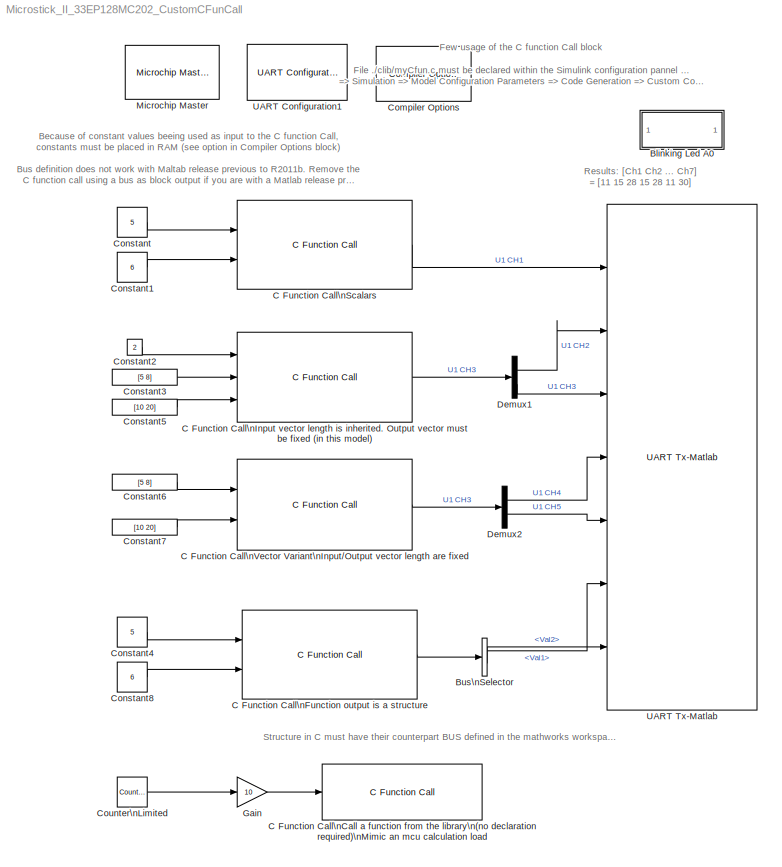
MODEL Microstick_II_33EP128MC202_CustomCFunCall
KIND model
CONFIG PreLoadFcn = disp('Start DefineBUS_Struct.m script');\ncd clib\nDefineBUS_Struct;\ncd ..\n
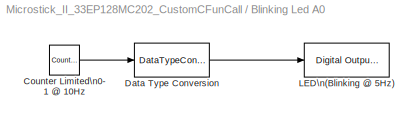
BLOCK [SubSystem] Blinking Led A0
  FunctionWithSeparateData = off
  MaskHideContents = off
  MinAlgLoopOccurrences = off
  Opaque = off
  Ports = []
  PropExecContextOutsideSubsystem = off
  RTWSystemCode = Auto
  RequestExecContextInheritance = off
  SID = 105
BLOCK [Reference] Blinking Led A0/Counter Limited\n0-1 @ 10Hz  REF=simulink/Sources/Counter\nLimited
  Ports = [0, 1]
  SID = 102
  SourceBlock = simulink/Sources/Counter\nLimited
  SourceType = Counter Limited
  tsamp = .1
  uplimit = 1
BLOCK [DataTypeConversion] Blinking Led A0/Data Type Conversion
  RndMeth = Floor
  SID = 103
  SaturateOnIntegerOverflow = off
BLOCK [Reference] Blinking Led A0/LED\n(Blinking @ 5Hz)  REF=MCHP_Blockset/Digital IO/Digital Output\nWrite
  MCHP_MASTERLINK = Microstick_II_33EP128MC202_CustomCFunCall/Microchip Master
  MCHP_PORT = {Digital Out}{DOU}1:1:A0;
  ORDERING = None
  PACK = off
  PIN = 0
  PORT = Dynamic Options
  PORT_TXT = A   [ 0 : 4 ]
  Ports = [1]
  SID = 111
  SIMULTANEOUS = off
  SampleTime = -1
  SourceBlock = MCHP_Blockset/Digital IO/Digital Output\nWrite
  SourceType = Output driver for Digital Output Pins
BLOCK [BusSelector] Bus\nSelector
  OutputSignals = Val1,Val2
  Ports = [1, 2]
  SID = 100
BLOCK [Reference] C Function Call\nCall a function from the library\n(no declaration required)\nMimic an mcu calculation load  REF=MCHP_Blockset/User Functions/C Function Call
  AddHeaderDeclaration = off
  DataCollected = 0
  Fct1BlockIn = t_us
  FctReturnBlockOut = off
  Function1 = extern void __delay_us(unsigned long t_us);
  Function1Type = when block is updated (default)
  ListFunctions1 = Custom Function
  MCHP_MASTERLINK = Microstick_II_33EP128MC202_CustomCFunCall/Microchip Master
  ORDERING = None
  ParseFilesChkbx = off
  PinAnalogInput = []
  PinDigitalInput = []
  PinDigitalOutput = []
  Ports = [1]
  SID = 108
  SampleTime = -1
  SourceBlock = MCHP_Blockset/User Functions/C Function Call
  SourceType = C Function Call
BLOCK [Reference] C Function Call\nFunction output is a structure  REF=MCHP_Blockset/User Functions/C Function Call
  AddHeaderDeclaration = on
  DataCollected = s.chksm={ '47804-Jul-2014 11:07:09'};s.File1=reshape({ ' unsigned int  myAdd(unsigned int A, unsigned int B)','  void  myAdd_ptr(unsigned int n, unsigned int* A, unsigned int* B, unsigned int* C)','  myStruct  myFct(unsigned int A, unsigned int B)'},1,3);  <repeated x3 — deduplicated; at blocks: C Function Call\nFunction output is a structure, C Function Call\nScalars, C Function Call\nVector Variant\nInput/Output v…>
  Fct1BlockIn = A  , B
  FctReturnBlockOut = on
  Function1 = myStruct myFct(unsigned int A, unsigned int B)
  Function1Type = when block is updated (default)
  ListFunctions1 = Custom Function
  MCHP_MASTERLINK = Microstick_II_33EP128MC202_CustomCFunCall/Microchip Master
  ORDERING = None
  ParseFilesChkbx = on
  PinAnalogInput = []
  PinDigitalInput = []
  PinDigitalOutput = []
  Ports = [2, 1]
  SID = 97
  SampleTime = -1
  SourceBlock = MCHP_Blockset/User Functions/C Function Call
  SourceType = C Function Call
BLOCK [Reference] C Function Call\nInput vector length is inherited. Output vector must be fixed (in this model)  REF=MCHP_Blockset/User Functions/C Function Call
  AddHeaderDeclaration = on
  DataCollected = 0
  Fct1BlockIn = n  , A  , B
  Fct1BlockOut = C[2]
  FctReturnBlockOut = off
  Function1 = void myAdd_ptr(unsigned int n, unsigned int* A, unsigned int* B, unsigned int* C)
  Function1Type = when block is updated (default)
  ListFunctions1 = Custom Function
  MCHP_MASTERLINK = Microstick_II_33EP128MC202_CustomCFunCall/Microchip Master
  ORDERING = None
  ParseFilesChkbx = on
  PinAnalogInput = []
  PinDigitalInput = []
  PinDigitalOutput = []
  Ports = [3, 1]
  SID = 86
  SampleTime = -1
  SourceBlock = MCHP_Blockset/User Functions/C Function Call
  SourceType = C Function Call
BLOCK [Reference] C Function Call\nScalars  REF=MCHP_Blockset/User Functions/C Function Call
  AddHeaderDeclaration = on
  Fct1BlockIn = A  , B
  FctReturnBlockOut = on
  Function1 = unsigned int myAdd(unsigned int A, unsigned int B)
  Function1Type = when block is updated (default)
  ListFunctions1 = Custom Function
  MCHP_MASTERLINK = Microstick_II_33EP128MC202_CustomCFunCall/Microchip Master
  ORDERING = None
  ParseFilesChkbx = on
  PinAnalogInput = []
  PinDigitalInput = []
  PinDigitalOutput = []
  Ports = [2, 1]
  SID = 58
  SampleTime = -1
  SourceBlock = MCHP_Blockset/User Functions/C Function Call
  SourceType = C Function Call
BLOCK [Reference] C Function Call\nVector Variant\nInput//Output vector length are fixed  REF=MCHP_Blockset/User Functions/C Function Call
  AddHeaderDeclaration = off
  Fct1BlockIn = n=2 , A[2]  , B[2]
  Fct1BlockOut = C[2]
  FctReturnBlockOut = off
  Function1 = void myAdd_ptr(unsigned int n, unsigned int* A, unsigned int* B, unsigned int* C)
  Function1Type = when block is updated (default)
  ListFunctions1 = Custom Function
  MCHP_MASTERLINK = Microstick_II_33EP128MC202_CustomCFunCall/Microchip Master
  ORDERING = None
  ParseFilesChkbx = on
  PinAnalogInput = []
  PinDigitalInput = []
  PinDigitalOutput = []
  Ports = [2, 1]
  SID = 91
  SampleTime = -1
  SourceBlock = MCHP_Blockset/User Functions/C Function Call
  SourceType = C Function Call
BLOCK [Reference] Compiler Options  REF=MCHP_Blockset/System Configuration/Compiler Options
  AssemblyListing = off
  COMP_LIST = Dynamic Options
  COMP_LIST_TXT = xc16 - v1.26
  DEBUG_INFO = on
  HEAP_SIZE = 0
  LATEST_CMPLR = on
  MCHP_MASTERLINK = Microstick_II_33EP128MC202_CustomCFunCall/Microchip Master
  MCHP_MULTITHREAD_COMPILATION = on
  MCODE = is less than 32768 (faster)
  MCONST = in data memory
  MDATA = Use only memory below address 8192 (faster)
  MPLAB_LINKLIB = default
  MPLAB_LINKLIB1 = default
  MSCALAR = Use only memory below address 8192 (faster)
  OMF = elf
  OMIT_FRAME_POINTER = off
  OPTIMIZATION_LEVEL = 3
  PROCEDURAL_ABSTRACTION = off
  Ports = []
  Priority = 1
  ProduceHexOutput = off
  SID = 67
  SourceBlock = MCHP_Blockset/System Configuration/Compiler Options
  UNROLL_LOOPS = off
  USE_64BIT_DOUBLE = off
BLOCK [Constant] Constant
  OutDataTypeStr = Inherit: Inherit via back propagation
  SID = 60
  SampleTime = .005
  Value = 5
BLOCK [Constant] Constant1
  OutDataTypeStr = Inherit: Inherit via back propagation
  SID = 66
  SampleTime = .005
  Value = 6
BLOCK [Constant] Constant2
  OutDataTypeStr = Inherit: Inherit via back propagation
  SID = 87
  SampleTime = .005
  Value = 2
BLOCK [Constant] Constant3
  OutDataTypeStr = Inherit: Inherit via back propagation
  SID = 88
  SampleTime = .005
  Value = [5 8]
BLOCK [Constant] Constant4
  OutDataTypeStr = Inherit: Inherit via back propagation
  SID = 98
  SampleTime = .005
  Value = 5
BLOCK [Constant] Constant5
  OutDataTypeStr = Inherit: Inherit via back propagation
  SID = 89
  SampleTime = .005
  Value = [10 20]
BLOCK [Constant] Constant6
  OutDataTypeStr = Inherit: Inherit via back propagation
  SID = 93
  SampleTime = .005
  Value = [5 8]
BLOCK [Constant] Constant7
  OutDataTypeStr = Inherit: Inherit via back propagation
  SID = 94
  SampleTime = .005
  Value = [10 20]
BLOCK [Constant] Constant8
  OutDataTypeStr = Inherit: Inherit via back propagation
  SID = 99
  SampleTime = .005
  Value = 6
BLOCK [Reference] Counter\nLimited  REF=simulink/Sources/Counter\nLimited
  Ports = [0, 1]
  SID = 109
  SourceBlock = simulink/Sources/Counter\nLimited
  SourceType = Counter Limited
  tsamp = .01
  uplimit = 10
BLOCK [Demux] Demux1
  DisplayOption = bar
  Outputs = 2
  Ports = [1, 2]
  SID = 90
BLOCK [Demux] Demux2
  DisplayOption = bar
  Outputs = 2
  Ports = [1, 2]
  SID = 95
BLOCK [Gain] Gain
  Gain = 10
  OutDataTypeStr = uint32
  ParamDataTypeStr = uint32
  SID = 110
  SaturateOnIntegerOverflow = off
BLOCK [Reference] Microchip Master  REF=MCHP_Blockset/System Configuration/Microchip Master
  ACTIV_PLL = on
  ACTIV_PLL_spd = on
  AIVTDIS = Disable Alternate Vector Table
  ALTADREF = AVREF+/AVREF- are mapped to RA9/RA10
  ALTCMPI = C1INC is on RB13; C2INC is on RB9 and C3INC is on RA0
  ALTCVREF = CVREF+/CVREF- are mapped to RA9/RA10
  ALTI2C = I2C mapped to SDA1/SCL1 pins
  ALTI2C1 = I2C1 mapped to SDA1/SCL1 pins
  ALTI2C2 = I2C2 mapped to SDA2/SCL2 pins
  ALTPMP = EPMP pins are in default location mode
  ALTQIO = QEA1; QEB1; INDX1 are selected as inputs to QEI1
  ALTRB6 = Append the RP6/ASCL1/PMPD6 functions of RB6 to RA1 pin functions
  ALTSS1 = SS1A is selected as the I/O pin for SPI1
  ALTVREF = Voltage reference input; ADC =RA9/RA10 Comparator =RA9;RA10
  APL = Aux Flash Code protect is disabled
  APLK = Aux Flash Write Protection or Code Protection is Enabled
  ATMOD8 = Not used
  AWRP = Aux Flash may be written
  BACKBUG = Not used
  BKBUG = Device resets into Operational mode
  BODENV = 2.7V
  BOOTISA = Boot code and Exception code is MIPS32
  BOREN = Disable
  BOREN0 = Enabled
  BOREN1 = BOR Enabled [When BOREN=1]
  BORV = Brown-out Reset set at 2.0V
  BSEN = No Boot Segment
  BSLIM = Not used
  BSS = No boot program Flash segment
  BSS2 = No Boot Segment
  BTMODE = Device is in Single Boot (legacy) mode
  BTSWP = Not used
  BUSYFLAG = Dynamic Options
  BUSYFLAG_TXT = None
  BWP = Protection Disabled
  BWRP = Boot Segment may be written
  CMPPOL0 = Hysteresis is applied to falling edge
  CMPPOL1 = Hysteresis is applied to falling edge
  COE = Reset Into Operational Mode
  CP = Protection Disabled
  CSEQ = Not used
  CSS = No Protection (other than CWRP)
  CTXT1 = Not Assigned
  CTXT2 = Not Assigned
  CWRP = Configuration Segment may be written
  DBCC = Not used
  DBGPER = Allow CPU access to all permission regions
  DEBUG = Debugger is disabled
  DFMCY = Not used
  DISUVREG = Regulator is disabled
  DMTCNT = 2^31 (2147483648)
  DMTEN = Dead Man Timer is Enabled and cannot be disabled by software
  DMTINTV = Window/Interval value is 127/128 counter value
  DMTIVT = Not used
  DSBOREN = Deep Sleep BOR enabled in Deep Sleep
  DSLPBOR = Deep Sleep BOR enabled in Deep Sleep
  DSSWEN = Deep Sleep is controlled by the register bit DSEN
  DSWDTEN = DSWDT enabled
  DSWDTOSC = DSWDT uses Low Power RC Oscillator (LPRC)
  DSWDTPS = 1:2;147;483;648 (25.7 Days)
  EBS = No Boot EEPROM
  EJTAGBEN = Normal EJTAG functionality
  ESS = No Segment Data EEPROM
  EXTDDRSIZE = External DDR2 Size is 128 MB
  FCANIO = Default CAN I/O
  FCKSM = Clock switching is enabled;Fail-safe Clock Monitor is disabled
  FCKSMEN = Sw Disabled; Mon Disabled
  FDMTEN = Deadman Timer is disabled
  FECCCON = ECC and Dynamic ECC are disabled (ECCCON bits are writable)
  FETHIO = Default Ethernet I/O
  FMIIEN = MII Enabled
  FNOSC = Internal Fast RC (FRC)
  FOS = Primary Oscillator
  FOSFPR = HS3 w/PLL 16x
  FPBDIV = Pb_Clk is Sys_Clk/8
  FPLLICLK = FRC is input to the System PLL
  FPLLIDIV = 12x Divider
  FPLLMUL = 24x Multiplier
  FPLLMULT = PLL Multiply by 128
  FPLLODIV = PLL Divide by 256
  FPLLRNG = 34-68 MHz Input
  FPR = ECIO w/ PLL 16x
  FPWRT = 128ms
  FRANGE = High Range
  FSLEEP = Flash is powered down when the device is in Sleep mode
  FSOSCEN = Enabled
  FSRSSEL = SRS Priority 7
  FUSBIDIO = Controlled by the USB Module
  FVBUSONIO = Controlled by USB Module
  FWDTEN = Disable
  FWDTWINSZ = Window size is 25%
  FWPSA = WDT prescaler ratio of 1:128
  FWPSA0 = 1:128
  FWPSB = 1:16
  GCP = General Segment Code protect is disabled
  GSS = General Segment Code protect is disabled
  GSS0 = No protection
  GSSK = General Segment Write Protection or Code Protection is Enabled
  GWRP = General Segment may be written
  HPOL = PWM module high side output pins have active-high output polarity
  HYST0 = 45 mV Hysteresis
  HYST1 = 45 mV Hysteresis
  I2C1SEL = Use Default SCL1/SDA1 Pins For I2C1
  I2C2SEL = I2C2 is multiplexed to SDA2/RA3 and SCL2/RA2
  ICESEL = Communicate on PGEC1/PGED1
  ICS = Communicate on PGEC1 and PGED1
  IESO = Start up with FRC; then switch
  IOL1WAY = Allow only one reconfiguration
  JTAGEN = Disable
  LPCFG = Disabled - regardless of RETEN
  LPOL = PWM module low side output pins have active-high output polarity
  LPRCSEL = High Power; High Accuracy Mode
  LVRCFG = Low Voltage regulator is not available
  MCHPVAR = MCHP.fcy.periph=MCHP_Fun.Hex2num('[418C9DC9C9249248]');MCHP.fcy.MIPS=MCHP_Fun.Hex2num('[418C9DC9C9249248]');MCHP.PowerSave=0;MCHP.TimeStepFactor=MCHP_Fun.Hex2num('[3FEFFFFE00CDCD2A]');MCHP.TimeStep_Timer=1;MCHP.NTIMERS=5;MCHP.id.name='33EP128MC202';MCHP.id.N=reshape([33 128 202],1,3);MCHP.id.L=reshape({ 'EP','MC',''},1,3);MCHP.id.Arch=3;MCHP.periph.PPS.reg_RPINRx=reshape([-1 1 1 -1 -1 -1 1 -1 -1 -...<+5789ch>
  MCHP_CRC = 3132789
  MCHP_PLLRegisters = [5    226  16387     -1]
  MCHP_TIMER_REQUEST = {Time Step}{TS}0:2:3:1:[]:300064.2857142857;
  MCHP_TIMER_RESULT = [1 37507.035714285696 ]
  MCLRE = RA5 input pin disabled;MCLR pin enabled
  MIPS = 60.012857142857136 * 1e6
  MIPS_DESIRED = 60e6
  MIPS_DESIRED_spd = 60e6
  ON = Not used
  OSCILLATOR_SELECT = Internal Fast RC (FRC)
  OSCILLATOR_SELECT_spd = Internal Fast RC (FRC)
  OSCIOFCN = OSCO/CLKO/RC15 functions as CLKO (FOSC/2)
  OSCIOFNC = OSC2 is general purpose digital I/O pin
  PGL1WAY = Allow only one reconfiguration
  PICREF = 33EP128MC202
  PLL96MHZ = 96 MHz PLL Startup is enabled automatically on start-up
  PLLDIV = PLL is disabled
  PLLKEN = Clock switch to PLL source will wait until the PLL lock signal is valid.
  PLLSS = PLL is fed by the Primary oscillator
  PLL_96MHZ = Enabled
  PMDL1WAY = Allow only one reconfiguration
  POSCBOOST = Boost the kick start of the oscillator
  POSCFREQ = Primary oscillator/external clock input frequency greater than 8MHz
  POSCGAIN = 2x gain setting
  POSCMD = EC (External Clock) Mode
  POSCMOD = Primary Oscillator Disabled
  POWERSAVE = off
  PWMLOCK = PWM registers may be written without key sequence
  PWMPIN = PWM module pins controlled by PORT register at device Reset
  PWP = Disable
  PWRTEN = PWRT enabled
  Ports = []
  QUARTZ = 7.37e+06
  QUARTZ_spd = 7.37e+06
  RBS = No Boot RAM
  RES = Not used
  RES1 = Not used
  RES2 = Not used
  RESERVED1 = Not used
  RETCFG = Retention regulator is not available
  RSS = No Secure RAM
  RSTPRI = Device will obtain reset instruction from Primary flash
  RTCBAT = RTC operation is continued through VBAT
  RTCOSC = RTCC uses Secondary Oscillator (SOSC)
  SEQNUM = Not used
  SID = 45
  SMCLR = MCLR pin generates a normal system Reset
  SOSCBOOST = Boost the kick start of the oscillator
  SOSCGAIN = 2x gain setting
  SOSCSEL = Secondary oscillator configured for high-power operation
  SOSCSRC = Analog Mode for use with crystal
  SSS = No Secure Segment
  SWRP = Secure segment may be written
  SourceBlock = MCHP_Blockset/System Configuration/Microchip Master
  TEMP = Not used
  TIMESTEP_REF = Timer  ( 0.005s + [-9.5218e-05%] ==> 0.005s )
  TRCEN = Trace features in the CPU are enabled
  TSEQ = Not used
  UPLLEN = Disabled and bypassed
  UPLLFSEL = USB PLL input is 24 MHz
  UPLLIDIV = 12x Divider
  USERID = Not used
  VBTBOR = VBAT BOR enabled
  WDT = Disable
  WDTCLK = WDT uses LPRC
  WDTCMX = WDT clock source is determined by the WDTCLK Configuration bits
  WDTEN = Disable
  WDTPOST = 1:32768
  WDTPRE = 1:128
  WDTPS = 1:32768
  WDTSPGM = WDT stops during Flash programming
  WDTWIN = WDT Window is 25% of WDT period
  WINDIS = Watchdog Timer in Non-Window mode
  WPCFG = Disable
  WPDIS = Disable
  WPEND = Write Protect from WPFP to the last page of memory
  WPFP = Page 127 (0x1FC00)
  WUTSEL = Default regulator start-up time used
  WWDTEN = Non-Window mode
  nSEQNUM = Not used
BLOCK [Reference] UART Configuration1  REF=MCHP_Blockset/BUS UART/UART Configuration
  ALT_IO = on
  BAUD_Choice = Dynamic Options
  BAUD_Choice_IR = Dynamic Options
  BAUD_Choice_IR_InitSeq = Dynamic Options
  BAUD_Choice_IR_InitSeq_TXT = 0
  BAUD_Choice_IR_TXT = []
  BAUD_Choice_InitSeq = Dynamic Options
  BAUD_Choice_InitSeq_TXT = 0
  BAUD_Choice_TXT = 115200         [+0.18%]
  BAUD_Custom = 115200
  BAUD_Custom_InitSeq = 0
  FlowControl = None
  IRDA = off
  InitSequence = 'Hello World'
  InitSequence_chkbox = off
  MCHP_COM_ExtPil = off
  MCHP_MASTERLINK = Microstick_II_33EP128MC202_CustomCFunCall/Microchip Master
  MCHP_PORT = {UART1  Tx}{U1TX}3:1:P42;
  PIN_CTS = Dynamic Options
  PIN_CTS_TXT = A4 / P20 / Pin[12]
  PIN_RTS = Dynamic Options
  PIN_RTS_TXT = A4 / P20 / Pin[12]
  PIN_RX = Dynamic Options
  PIN_RX_TXT = B11 / P43 / Pin[22]
  PIN_TX = Dynamic Options
  PIN_TX_TXT = B10 / P42 / Pin[21]
  Ports = []
  RX_CIRCULAR_SIZE = 32
  RX_IMPLEMENTATION = Do not implement Rx
  RX_INT_PRIORITY = 1
  RX_INT_WHEN = receive 1 character
  SID = 107
  SourceBlock = MCHP_Blockset/BUS UART/UART Configuration
  SourceType = Configuration for UART peripheral
  TX_CIRCULAR_SIZE = 32
  TX_DMA_CHANNEL = 0   (Lowest Priority)
  TX_DMA_SIZE = []
  TX_IMPLEMENTATION = Circular Buffer
  TX_INT_PRIORITY = 5
  TX_INT_WHEN = is empty & last char is sent
  UART_REF = 1
BLOCK [Reference] UART Tx-Matlab  REF=MCHP_Blockset/BUS UART/UART Tx-Matlab
  AllOrNothing = on
  CHANNELS = [1 2 3 4 5 6 7]
  MCHP_COMPILED_INFO = CompiledSampleTime= [0.0050000000000000001   0 ];CompiledInportDataTypes=[  5   5   5   5   5   5   5 ];CompiledInportDataWidth=[1  1  1  1  1  1  1];
  MCHP_MASTERLINK = Microstick_II_33EP128MC202_CustomCFunCall/Microchip Master
  Ports = [7]
  SID = 57
  SampleTime = -1
  SourceBlock = MCHP_Blockset/BUS UART/UART Tx-Matlab
  SourceType = Higl Level UART protocol
  UART_REF = 1
ANNOTATION (root): Because of constant values beeing used as input to the C function Call, \nconstants must be placed in RAM (see option in Compiler Options block)\n\nBus definition does not work with Maltab release previous to R2011b. Remove the\nC function call using a bus as block output if you are with a Matlab release prior to R2011b.
ANNOTATION (root): Few usage of the C function Call block\nFile ./clib/myCfun.c must be declared within the Simulink configuration pannel (ctrl-e) for C function Call block to work.\n=> Simulation => Model Configuration Parameters => Code Generation => Custom Code => Include list of additional
ANNOTATION (root): Results: [Ch1 Ch2 ... Ch7]\n= [11 15 28 15 28 11 30]
ANNOTATION (root): Structure in C must have their counterpart BUS defined in the mathworks workspace (see script DefineBUS_Struct.m that define such bus)
LINE Blinking Led A0/Counter Limited\n0-1 @ 10Hz:1 -> Blinking Led A0/Data Type Conversion:1
LINE Blinking Led A0/Data Type Conversion:1 -> Blinking Led A0/LED\n(Blinking @ 5Hz):1
LINE Bus\nSelector:1 -> UART Tx-Matlab:6
LINE Bus\nSelector:2 -> UART Tx-Matlab:7
LINE C Function Call\nFunction output is a structure:1 -> Bus\nSelector:1
LINE C Function Call\nInput vector length is inherited. Output vector must be fixed (in this model):1 -> Demux1:1
LINE C Function Call\nScalars:1 -> UART Tx-Matlab:1
LINE C Function Call\nVector Variant\nInput//Output vector length are fixed:1 -> Demux2:1
LINE Constant1:1 -> C Function Call\nScalars:2
LINE Constant2:1 -> C Function Call\nInput vector length is inherited. Output vector must be fixed (in this model):1
LINE Constant3:1 -> C Function Call\nInput vector length is inherited. Output vector must be fixed (in this model):2
LINE Constant4:1 -> C Function Call\nFunction output is a structure:1
LINE Constant5:1 -> C Function Call\nInput vector length is inherited. Output vector must be fixed (in this model):3
LINE Constant6:1 -> C Function Call\nVector Variant\nInput//Output vector length are fixed:1
LINE Constant7:1 -> C Function Call\nVector Variant\nInput//Output vector length are fixed:2
LINE Constant8:1 -> C Function Call\nFunction output is a structure:2
LINE Constant:1 -> C Function Call\nScalars:1
LINE Counter\nLimited:1 -> Gain:1
LINE Demux1:1 -> UART Tx-Matlab:2
LINE Demux1:2 -> UART Tx-Matlab:3
LINE Demux2:1 -> UART Tx-Matlab:4
LINE Demux2:2 -> UART Tx-Matlab:5
LINE Gain:1 -> C Function Call\nCall a function from the library\n(no declaration required)\nMimic an mcu calculation load:1
